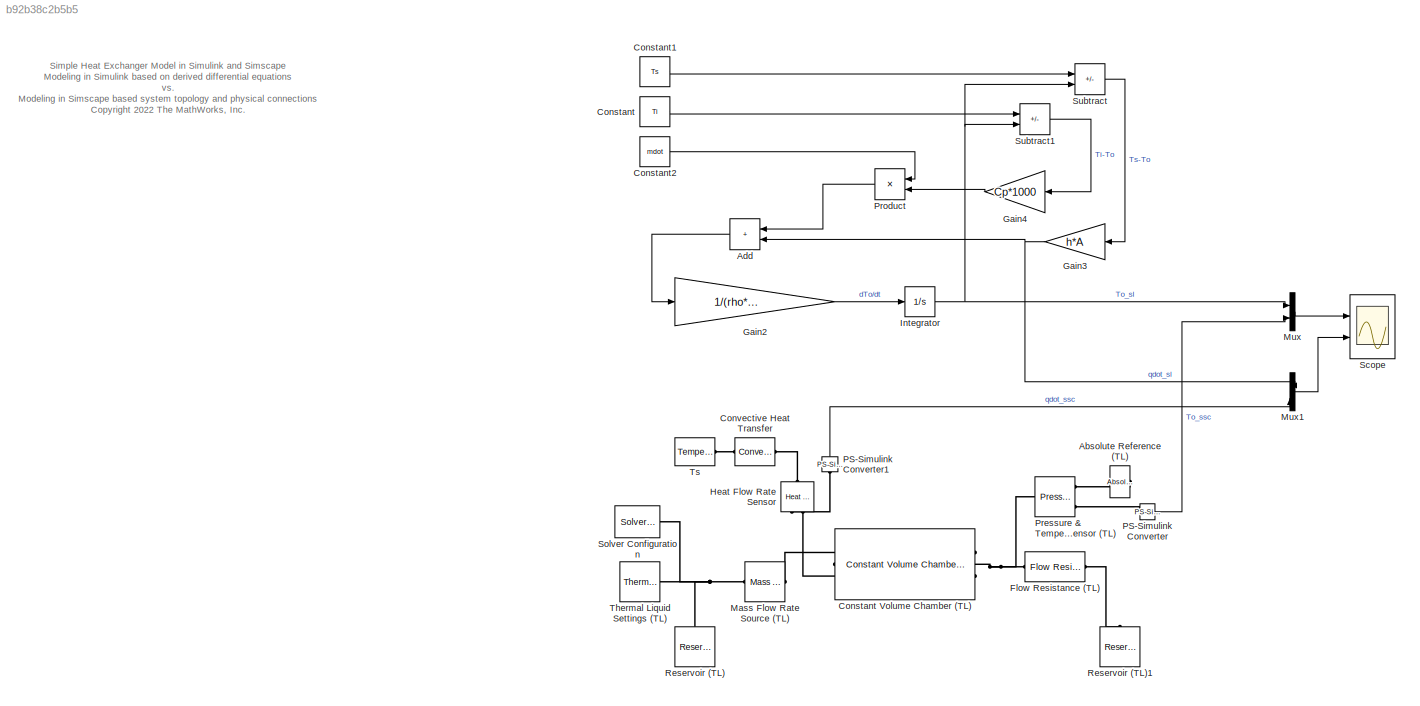
MODEL slx_b92b38c2b5b5
KIND model
CONFIG AbsTol = auto
CONFIG EnableMultiTasking = off
CONFIG FixedStep = auto
CONFIG MaxStep = auto
CONFIG MinStep = auto
CONFIG PreLoadFcn = param_SimpleHeatExchanger;
CONFIG RelTol = 1e-3
CONFIG SampleTimeConstraint = Unconstrained
CONFIG SolverName = VariableStepAuto
CONFIG StartTime = 0.0
CONFIG StopTime = 100
BLOCK [Reference] Absolute Reference (TL)  REF=fl_lib/Thermal Liquid/Elements/Absolute Reference
(TL)
  NameLocation = top
  Ports = [0, 0, 0, 0, 0, 1]
  SourceBlock = fl_lib/Thermal Liquid/Elements/Absolute Reference\n(TL)
  SourceProductBaseCode = SS
  SourceType = Absolute Reference\n(TL)
BLOCK [Sum] Add
  IconShape = rectangular
  Ports = [2, 1]
BLOCK [Constant] Constant
  NameLocation = top
  Value = Ti
BLOCK [Reference] Constant Volume Chamber (TL)  REF=fl_lib/Thermal Liquid/Elements/Constant Volume
Chamber (TL)
  NameLocation = top
  Ports = [0, 0, 0, 0, 0, 2, 1]
  SourceBlock = fl_lib/Thermal Liquid/Elements/Constant Volume\nChamber (TL)
  SourceProductBaseCode = SS
  SourceType = Constant Volume\nChamber (TL)
BLOCK [Constant] Constant1
  Value = Ts
BLOCK [Constant] Constant2
  Value = mdot
BLOCK [Reference] Convective Heat Transfer  REF=fl_lib/Thermal/Thermal Elements/Convective Heat
Transfer
  Ports = [0, 0, 0, 0, 0, 1, 1]
  SourceBlock = fl_lib/Thermal/Thermal Elements/Convective Heat\nTransfer
  SourceProductBaseCode = SS
  SourceType = Convective Heat\nTransfer
BLOCK [Reference] Flow Resistance (TL)  REF=fl_lib/Thermal Liquid/Elements/Flow Resistance (TL)
  Ports = [0, 0, 0, 0, 0, 1, 1]
  SourceBlock = fl_lib/Thermal Liquid/Elements/Flow Resistance (TL)
  SourceProductBaseCode = SS
  SourceType = Flow Resistance (TL)
BLOCK [Gain] Gain2
  Gain = 1/(rho*V*Cp*1000)
BLOCK [Gain] Gain3
  Gain = h*A
BLOCK [Gain] Gain4
  Gain = Cp*1000
BLOCK [Reference] Heat Flow Rate Sensor  REF=fl_lib/Thermal/Thermal Sensors/Heat Flow Rate
Sensor
  NameLocation = left
  Ports = [0, 0, 0, 0, 0, 1, 2]
  SourceBlock = fl_lib/Thermal/Thermal Sensors/Heat Flow Rate\nSensor
  SourceProductBaseCode = SS
  SourceType = Heat Flow Rate\nSensor
BLOCK [Integrator] Integrator
  InitialCondition = T0
  Ports = [1, 1]
BLOCK [Reference] Mass Flow Rate Source (TL)  REF=fl_lib/Thermal Liquid/Sources/Mass Flow Rate
Source (TL)
  Ports = [0, 0, 0, 0, 0, 1, 1]
  SourceBlock = fl_lib/Thermal Liquid/Sources/Mass Flow Rate\nSource (TL)
  SourceProductBaseCode = SS
  SourceType = Mass Flow Rate\nSource (TL)
BLOCK [Mux] Mux
  DisplayOption = bar
  Inputs = 2
  Ports = [2, 1]
BLOCK [Mux] Mux1
  DisplayOption = bar
  Inputs = 2
  Ports = [2, 1]
BLOCK [Reference] PS-Simulink Converter  REF=nesl_utility/PS-Simulink
Converter
  Ports = [0, 1, 0, 0, 0, 1]
  SourceBlock = nesl_utility/PS-Simulink\nConverter
  SourceProductBaseCode = PW,SS
  SourceType = PS-Simulink\nConverter
BLOCK [Reference] PS-Simulink Converter1  REF=nesl_utility/PS-Simulink
Converter
  NameLocation = right
  Ports = [0, 1, 0, 0, 0, 1]
  SourceBlock = nesl_utility/PS-Simulink\nConverter
  SourceProductBaseCode = PW,SS
  SourceType = PS-Simulink\nConverter
BLOCK [Reference] Pressure & Temperature Sensor (TL)  REF=fl_lib/Thermal Liquid/Sensors/Pressure &
Temperature Sensor
(TL)
  Ports = [0, 0, 0, 0, 0, 1, 3]
  SourceBlock = fl_lib/Thermal Liquid/Sensors/Pressure &\nTemperature Sensor\n(TL)
  SourceProductBaseCode = SS
  SourceType = Pressure &\nTemperature Sensor\n(TL)
BLOCK [Product] Product
  Ports = [2, 1]
BLOCK [Reference] Reservoir (TL)  REF=fl_lib/Thermal Liquid/Elements/Reservoir (TL)
  NameLocation = right
  Ports = [0, 0, 0, 0, 0, 1]
  SourceBlock = fl_lib/Thermal Liquid/Elements/Reservoir (TL)
  SourceProductBaseCode = SS
  SourceType = Reservoir (TL)
BLOCK [Reference] Reservoir (TL)1  REF=fl_lib/Thermal Liquid/Elements/Reservoir (TL)
  NameLocation = right
  Ports = [0, 0, 0, 0, 0, 1]
  SourceBlock = fl_lib/Thermal Liquid/Elements/Reservoir (TL)
  SourceProductBaseCode = SS
  SourceType = Reservoir (TL)
BLOCK [Scope] Scope
  Floating = off
  NumInputPorts = 2
  Ports = [2]
  ScopeSpecificationString = Simulink.scopes.TimeScopeBlockCfg('CurrentConfiguration', extmgr.ConfigurationSet(extmgr.Configuration('Core','General UI',true),extmgr.Configuration('Core','Source UI',true),extmgr.Configuration('Sources','WiredSimulink',true),extmgr.Configuration('Visuals','Time Domain',true,'SerializedDisplays',{struct('MinYLimReal','60','MaxYLimReal','120','YLabelReal','','MinYLimMag','76.35527','MaxYLimMag','...<+2329ch>
BLOCK [Reference] Solver Configuration  REF=nesl_utility/Solver
Configuration
  Ports = [0, 0, 0, 0, 0, 0, 1]
  SourceBlock = nesl_utility/Solver\nConfiguration
  SourceProductBaseCode = PW,SS
  SourceType = Solver\nConfiguration
BLOCK [Sum] Subtract
  IconShape = rectangular
  Inputs = +-
  Ports = [2, 1]
BLOCK [Sum] Subtract1
  IconShape = rectangular
  Inputs = +-
  Ports = [2, 1]
BLOCK [Reference] Thermal Liquid Settings (TL)  REF=fl_lib/Thermal Liquid/Utilities/Thermal Liquid
Settings (TL)
  Ports = [0, 0, 0, 0, 0, 0, 1]
  SourceBlock = fl_lib/Thermal Liquid/Utilities/Thermal Liquid\nSettings (TL)
  SourceProductBaseCode = SS
  SourceType = Thermal Liquid\nSettings (TL)
BLOCK [Reference] Ts  REF=fl_lib/Thermal/Thermal Sources/Temperature Source
  Ports = [0, 0, 0, 0, 0, 1]
  SourceBlock = fl_lib/Thermal/Thermal Sources/Temperature Source
  SourceProductBaseCode = SS
  SourceType = Temperature Source
ANNOTATION (root): Simple Heat Exchanger Model in Simulink and Simscape Modeling in Simulink based on derived differential equations vs. Modeling in Simscape based system topology and physical connections <copyright redacted>
LINE Add:1 -> Gain2:1
LINE Constant1:1 -> Subtract:1
LINE Constant2:1 -> Product:1
LINE Constant:1 -> Subtract1:1
LINE Gain2:1 -> Integrator:1
NET Gain3:1 -> Add:2, Mux1:1
LINE Gain4:1 -> Product:2
NET Integrator:1 -> Mux:1, Subtract1:2, Subtract:2
LINE Mux1:1 -> Scope:2
LINE Mux:1 -> Scope:1
LINE PS-Simulink Converter1:1 -> Mux1:2
LINE PS-Simulink Converter:1 -> Mux:2
LINE Product:1 -> Add:1
LINE Subtract1:1 -> Gain4:1
LINE Subtract:1 -> Gain3:1
PLINE Absolute Reference (TL):LConn1 -- Pressure & Temperature Sensor (TL):RConn1
PLINE Constant Volume Chamber (TL):LConn1 -- Mass Flow Rate Source (TL):RConn1
PLINE Constant Volume Chamber (TL):LConn2 -- Heat Flow Rate Sensor:RConn2
PNET net1: Constant Volume Chamber (TL):RConn1 -- Flow Resistance (TL):LConn1 -- Pressure & Temperature Sensor (TL):LConn1
PLINE Convective Heat Transfer:LConn1 -- Ts:LConn1
PLINE Convective Heat Transfer:RConn1 -- Heat Flow Rate Sensor:LConn1
PLINE Flow Resistance (TL):RConn1 -- Reservoir (TL)1:LConn1
PLINE Heat Flow Rate Sensor:RConn1 -- PS-Simulink Converter1:LConn1
PNET net2: Mass Flow Rate Source (TL):LConn1 -- Reservoir (TL):LConn1 -- Solver Configuration:RConn1 -- Thermal Liquid Settings (TL):RConn1
PLINE PS-Simulink Converter:LConn1 -- Pressure & Temperature Sensor (TL):RConn3
note: NET lines group one-source signal fan-out (src -> all destinations, sorted); 1:1 wires keep LINE; PNET lines group multi-terminal physical nets as a canonical sorted terminal list (undirected conserving connections); 2-terminal nets keep the pairwise PLINE form
